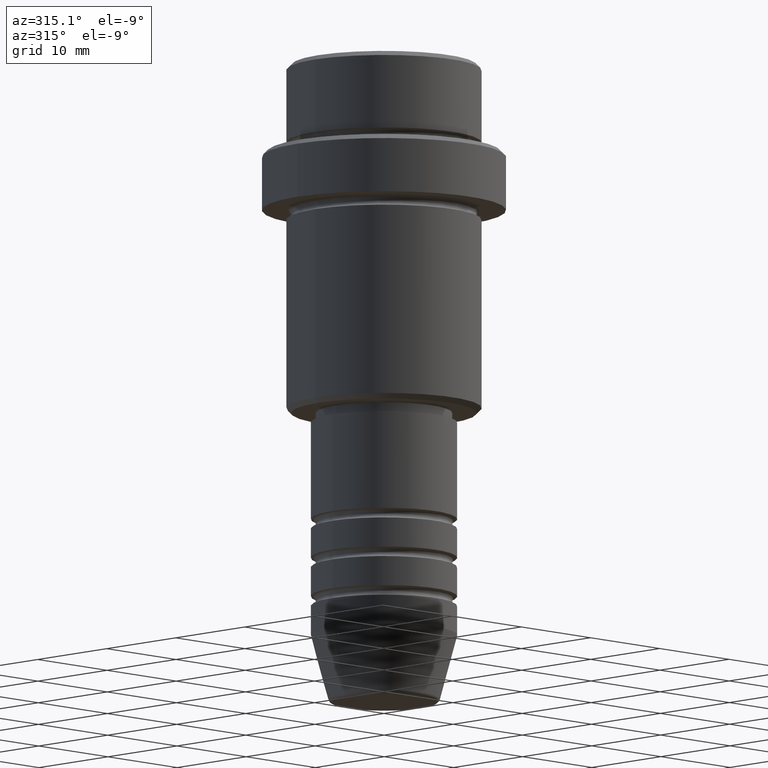
[diagram: clean part render]
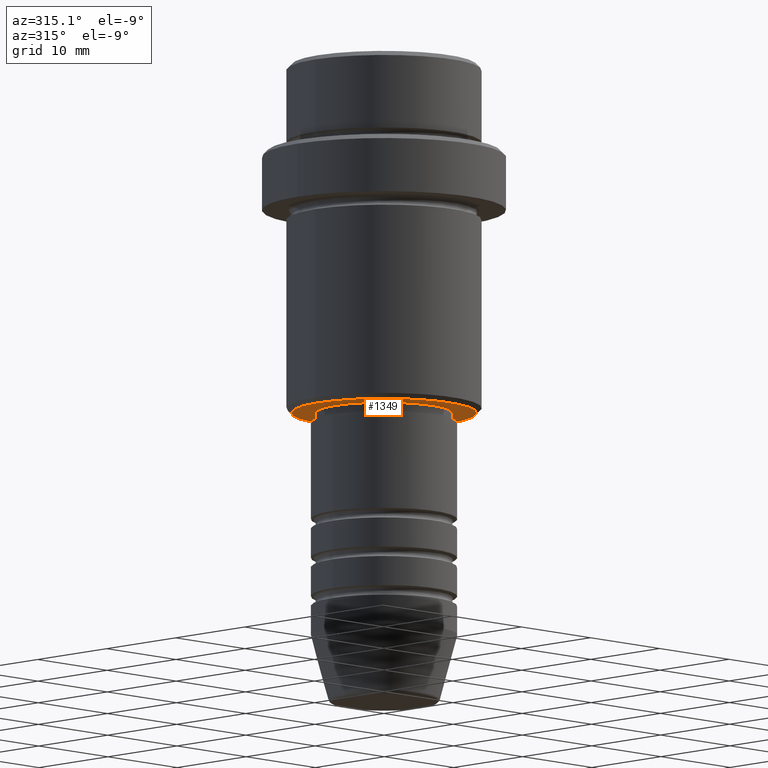
[diagram: same view with one face highlighted and labeled with its STEP entity id]
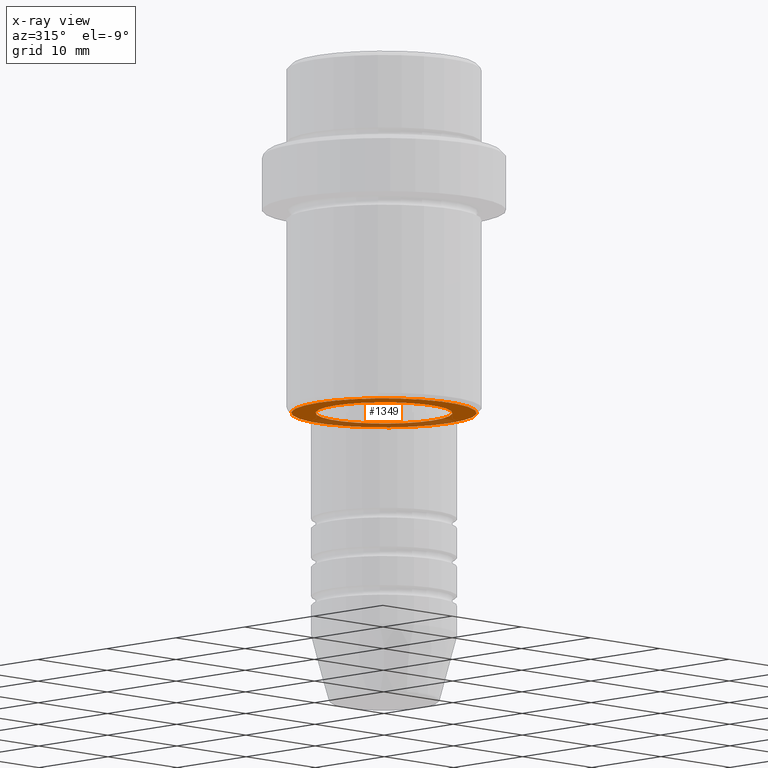
[diagram: x-ray of the same camera — body ghosted, the highlighted face saturated]
A machine part, auxiliary view. The second image highlights one B-rep face of the part: STEP entity #1349.
The next image is the same camera in x-ray: the body ghosted, the highlighted face saturated — about 31% of this face is hidden behind the body in this view.
In plain terms, the highlighted planar face has unit normal (0, 0, -1).
Its self-contained STEP definition (entity closure, byte-faithful):
#13 = CARTESIAN_POINT ( 'NONE',  ( 9.499999999999987566, 0.000000000000000000, -36.00000000000000000 ) ) ;
#29 = DIRECTION ( 'NONE',  ( 0.000000000000000000, 0.000000000000000000, -1.000000000000000000 ) ) ;
#41 = DIRECTION ( 'NONE',  ( -1.000000000000000000, 0.000000000000000000, 0.000000000000000000 ) ) ;
#52 = CIRCLE ( 'NONE', #740, 9.499999999999987566 ) ;
#64 = DIRECTION ( 'NONE',  ( 1.000000000000000000, 0.000000000000000000, 0.000000000000000000 ) ) ;
#65 = EDGE_LOOP ( 'NONE', ( #980, #150 ) ) ;
#132 = CIRCLE ( 'NONE', #646, 6.999999999999993783 ) ;
#137 = FACE_OUTER_BOUND ( 'NONE', #65, .T. ) ;
#145 = CARTESIAN_POINT ( 'NONE',  ( -6.999999999999993783, 8.572527594031465301E-16, -36.00000000000000000 ) ) ;
#150 = ORIENTED_EDGE ( 'NONE', *, *, #1403, .T. ) ;
#215 = CARTESIAN_POINT ( 'NONE',  ( 0.000000000000000000, 0.000000000000000000, -36.00000000000000000 ) ) ;
#240 = EDGE_CURVE ( 'NONE', #330, #1246, #543, .T. ) ;
#266 = AXIS2_PLACEMENT_3D ( 'NONE', #215, #1102, #1389 ) ;
#274 = EDGE_LOOP ( 'NONE', ( #1144, #992 ) ) ;
#293 = CARTESIAN_POINT ( 'NONE',  ( 0.000000000000000000, 0.000000000000000000, -36.00000000000000000 ) ) ;
#330 = VERTEX_POINT ( 'NONE', #145 ) ;
#372 = DIRECTION ( 'NONE',  ( -0.000000000000000000, -0.000000000000000000, 1.000000000000000000 ) ) ;
#422 = AXIS2_PLACEMENT_3D ( 'NONE', #586, #469, #825 ) ;
#469 = DIRECTION ( 'NONE',  ( 0.000000000000000000, 0.000000000000000000, -1.000000000000000000 ) ) ;
#482 = CIRCLE ( 'NONE', #947, 9.499999999999987566 ) ;
#543 = CIRCLE ( 'NONE', #266, 6.999999999999993783 ) ;
#586 = CARTESIAN_POINT ( 'NONE',  ( 0.000000000000000000, 10.00000000000000000, -36.00000000000000000 ) ) ;
#646 = AXIS2_PLACEMENT_3D ( 'NONE', #1352, #372, #64 ) ;
#719 = CARTESIAN_POINT ( 'NONE',  ( -9.499999999999987566, 1.194030629168668681E-15, -36.00000000000000000 ) ) ;
#740 = AXIS2_PLACEMENT_3D ( 'NONE', #1238, #1023, #41 ) ;
#825 = DIRECTION ( 'NONE',  ( -1.000000000000000000, 0.000000000000000000, -0.000000000000000000 ) ) ;
#871 = EDGE_CURVE ( 'NONE', #1240, #1369, #482, .T. ) ;
#901 = EDGE_CURVE ( 'NONE', #1246, #330, #132, .T. ) ;
#918 = FACE_BOUND ( 'NONE', #274, .T. ) ;
#947 = AXIS2_PLACEMENT_3D ( 'NONE', #293, #29, #978 ) ;
#978 = DIRECTION ( 'NONE',  ( -1.000000000000000000, 0.000000000000000000, 0.000000000000000000 ) ) ;
#980 = ORIENTED_EDGE ( 'NONE', *, *, #871, .T. ) ;
#992 = ORIENTED_EDGE ( 'NONE', *, *, #240, .T. ) ;
#1002 = CARTESIAN_POINT ( 'NONE',  ( 6.999999999999993783, 0.000000000000000000, -36.00000000000000000 ) ) ;
#1023 = DIRECTION ( 'NONE',  ( 0.000000000000000000, 0.000000000000000000, -1.000000000000000000 ) ) ;
#1041 = PLANE ( 'NONE',  #422 ) ;
#1102 = DIRECTION ( 'NONE',  ( -0.000000000000000000, -0.000000000000000000, 1.000000000000000000 ) ) ;
#1144 = ORIENTED_EDGE ( 'NONE', *, *, #901, .T. ) ;
#1238 = CARTESIAN_POINT ( 'NONE',  ( 0.000000000000000000, 0.000000000000000000, -36.00000000000000000 ) ) ;
#1240 = VERTEX_POINT ( 'NONE', #13 ) ;
#1246 = VERTEX_POINT ( 'NONE', #1002 ) ;
#1349 = ADVANCED_FACE ( 'NONE', ( #137, #918 ), #1041, .T. ) ;
#1352 = CARTESIAN_POINT ( 'NONE',  ( 0.000000000000000000, 0.000000000000000000, -36.00000000000000000 ) ) ;
#1369 = VERTEX_POINT ( 'NONE', #719 ) ;
#1389 = DIRECTION ( 'NONE',  ( 1.000000000000000000, 0.000000000000000000, 0.000000000000000000 ) ) ;
#1403 = EDGE_CURVE ( 'NONE', #1369, #1240, #52, .T. ) ;